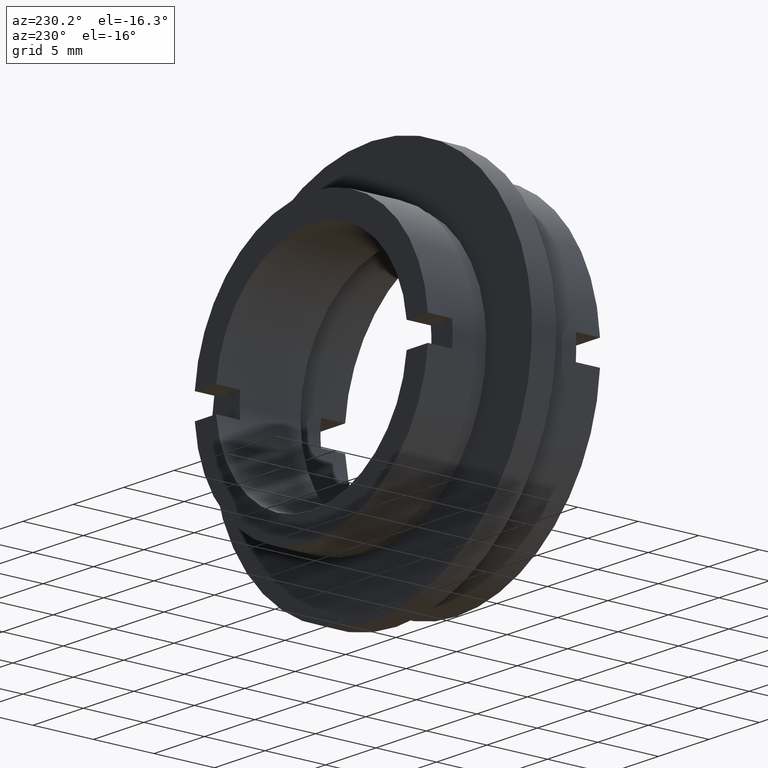
[diagram: clean part render]
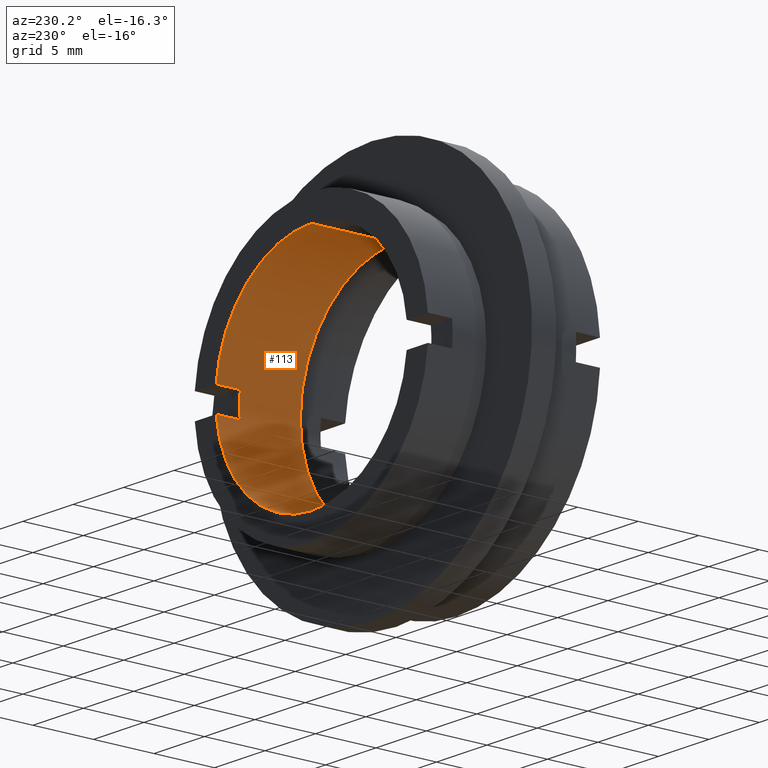
[diagram: same view with one face highlighted and labeled with its STEP entity id]
A machine part, auxiliary view. The second image highlights one B-rep face of the part: STEP entity #113.
In plain terms, the highlighted cylindrical surface (partial cylindrical patch) has radius 9.5 mm, axis along (-0, 1, -0).
Its self-contained STEP definition (entity closure, byte-faithful):
#52 = DIRECTION ( 'NONE',  ( -0.0000000000000000000, -1.000000000000000000, -0.0000000000000000000 ) ) ;
#61 = CIRCLE ( 'NONE', #926, 9.499999999999998200 ) ;
#68 = VERTEX_POINT ( 'NONE', #222 ) ;
#82 = ORIENTED_EDGE ( 'NONE', *, *, #1023, .T. ) ;
#108 = DIRECTION ( 'NONE',  ( 0.0000000000000000000, 0.0000000000000000000, 1.000000000000000000 ) ) ;
#113 = ADVANCED_FACE ( 'NONE', ( #931 ), #1177, .F. ) ;
#127 = DIRECTION ( 'NONE',  ( -0.0000000000000000000, 1.000000000000000000, -0.0000000000000000000 ) ) ;
#142 = CARTESIAN_POINT ( 'NONE',  ( 0.0000000000000000000, 12.00000000000000000, 0.0000000000000000000 ) ) ;
#161 = LINE ( 'NONE', #979, #205 ) ;
#176 = DIRECTION ( 'NONE',  ( -0.0000000000000000000, 1.000000000000000000, -0.0000000000000000000 ) ) ;
#180 = CARTESIAN_POINT ( 'NONE',  ( 1.163414459189985300E-015, 22.67749945107591400, -9.499999999999998200 ) ) ;
#203 = VECTOR ( 'NONE', #176, 1000.000000000000000 ) ;
#205 = VECTOR ( 'NONE', #127, 1000.000000000000000 ) ;
#222 = CARTESIAN_POINT ( 'NONE',  ( 0.0000000000000000000, 5.000000000000000900, 9.499999999999998200 ) ) ;
#225 = EDGE_LOOP ( 'NONE', ( #602, #240, #1231, #393, #1171, #342, #1048, #82 ) ) ;
#232 = LINE ( 'NONE', #1297, #891 ) ;
#240 = ORIENTED_EDGE ( 'NONE', *, *, #963, .F. ) ;
#262 = DIRECTION ( 'NONE',  ( 0.0000000000000000000, -1.000000000000000000, 0.0000000000000000000 ) ) ;
#266 = DIRECTION ( 'NONE',  ( -0.0000000000000000000, 1.000000000000000000, -0.0000000000000000000 ) ) ;
#269 = VERTEX_POINT ( 'NONE', #582 ) ;
#284 = CIRCLE ( 'NONE', #1123, 9.499999999999998200 ) ;
#342 = ORIENTED_EDGE ( 'NONE', *, *, #968, .F. ) ;
#393 = ORIENTED_EDGE ( 'NONE', *, *, #988, .T. ) ;
#402 = CARTESIAN_POINT ( 'NONE',  ( 0.0000000000000000000, 5.000000000000000900, 0.0000000000000000000 ) ) ;
#408 = DIRECTION ( 'NONE',  ( -0.0000000000000000000, 1.000000000000000000, -0.0000000000000000000 ) ) ;
#424 = CIRCLE ( 'NONE', #1041, 9.499999999999998200 ) ;
#477 = DIRECTION ( 'NONE',  ( -0.0000000000000000000, 1.000000000000000000, -0.0000000000000000000 ) ) ;
#535 = VERTEX_POINT ( 'NONE', #801 ) ;
#557 = VERTEX_POINT ( 'NONE', #1102 ) ;
#576 = VERTEX_POINT ( 'NONE', #1134 ) ;
#578 = CARTESIAN_POINT ( 'NONE',  ( 0.0000000000000000000, 12.00000000000000000, 0.0000000000000000000 ) ) ;
#582 = CARTESIAN_POINT ( 'NONE',  ( 9.447221813845590800, 10.00000000000000000, -0.9999999999999974500 ) ) ;
#602 = ORIENTED_EDGE ( 'NONE', *, *, #1050, .F. ) ;
#615 = EDGE_CURVE ( 'NONE', #68, #1151, #232, .T. ) ;
#642 = AXIS2_PLACEMENT_3D ( 'NONE', #142, #477, #877 ) ;
#668 = VERTEX_POINT ( 'NONE', #759 ) ;
#678 = CARTESIAN_POINT ( 'NONE',  ( 0.0000000000000000000, 22.67749945107591400, 0.0000000000000000000 ) ) ;
#747 = DIRECTION ( 'NONE',  ( 0.0000000000000000000, 0.0000000000000000000, 1.000000000000000000 ) ) ;
#757 = EDGE_CURVE ( 'NONE', #576, #269, #1068, .T. ) ;
#759 = CARTESIAN_POINT ( 'NONE',  ( 9.447221813845590800, 12.00000000000000000, 1.000000000000001600 ) ) ;
#801 = CARTESIAN_POINT ( 'NONE',  ( 1.163414459189985300E-015, 12.00000000000000000, -9.499999999999998200 ) ) ;
#864 = DIRECTION ( 'NONE',  ( -0.0000000000000000000, 1.000000000000000000, -0.0000000000000000000 ) ) ;
#877 = DIRECTION ( 'NONE',  ( 0.0000000000000000000, 0.0000000000000000000, 1.000000000000000000 ) ) ;
#886 = VERTEX_POINT ( 'NONE', #962 ) ;
#891 = VECTOR ( 'NONE', #1278, 1000.000000000000000 ) ;
#905 = AXIS2_PLACEMENT_3D ( 'NONE', #678, #266, #108 ) ;
#926 = AXIS2_PLACEMENT_3D ( 'NONE', #578, #864, #747 ) ;
#931 = FACE_OUTER_BOUND ( 'NONE', #225, .T. ) ;
#962 = CARTESIAN_POINT ( 'NONE',  ( 9.447221813845590800, 10.00000000000000000, 1.000000000000001300 ) ) ;
#963 = EDGE_CURVE ( 'NONE', #68, #557, #284, .T. ) ;
#968 = EDGE_CURVE ( 'NONE', #269, #886, #424, .T. ) ;
#974 = EDGE_CURVE ( 'NONE', #886, #668, #161, .T. ) ;
#979 = CARTESIAN_POINT ( 'NONE',  ( 9.447221813845589000, 22.67749945107591400, 1.000000000000002900 ) ) ;
#988 = EDGE_CURVE ( 'NONE', #1151, #668, #61, .T. ) ;
#993 = CARTESIAN_POINT ( 'NONE',  ( 9.447221813845589000, 22.67749945107591400, -1.000000000000000000 ) ) ;
#1008 = CARTESIAN_POINT ( 'NONE',  ( 0.0000000000000000000, 12.00000000000000000, 9.499999999999998200 ) ) ;
#1023 = EDGE_CURVE ( 'NONE', #576, #535, #1046, .T. ) ;
#1041 = AXIS2_PLACEMENT_3D ( 'NONE', #1149, #52, #1055 ) ;
#1046 = CIRCLE ( 'NONE', #642, 9.499999999999998200 ) ;
#1048 = ORIENTED_EDGE ( 'NONE', *, *, #757, .F. ) ;
#1050 = EDGE_CURVE ( 'NONE', #557, #535, #1276, .T. ) ;
#1055 = DIRECTION ( 'NONE',  ( 0.0000000000000000000, 0.0000000000000000000, -1.000000000000000000 ) ) ;
#1058 = VECTOR ( 'NONE', #262, 1000.000000000000000 ) ;
#1068 = LINE ( 'NONE', #993, #1058 ) ;
#1102 = CARTESIAN_POINT ( 'NONE',  ( 1.163414459189985300E-015, 5.000000000000000900, -9.499999999999998200 ) ) ;
#1123 = AXIS2_PLACEMENT_3D ( 'NONE', #402, #408, #1334 ) ;
#1134 = CARTESIAN_POINT ( 'NONE',  ( 9.447221813845590800, 12.00000000000000000, -0.9999999999999978900 ) ) ;
#1149 = CARTESIAN_POINT ( 'NONE',  ( 0.0000000000000000000, 10.00000000000000000, 0.0000000000000000000 ) ) ;
#1151 = VERTEX_POINT ( 'NONE', #1008 ) ;
#1171 = ORIENTED_EDGE ( 'NONE', *, *, #974, .F. ) ;
#1177 = CYLINDRICAL_SURFACE ( 'NONE', #905, 9.499999999999998200 ) ;
#1231 = ORIENTED_EDGE ( 'NONE', *, *, #615, .T. ) ;
#1276 = LINE ( 'NONE', #180, #203 ) ;
#1278 = DIRECTION ( 'NONE',  ( -0.0000000000000000000, 1.000000000000000000, -0.0000000000000000000 ) ) ;
#1297 = CARTESIAN_POINT ( 'NONE',  ( 0.0000000000000000000, 22.67749945107591400, 9.499999999999998200 ) ) ;
#1334 = DIRECTION ( 'NONE',  ( 0.0000000000000000000, 0.0000000000000000000, 1.000000000000000000 ) ) ;